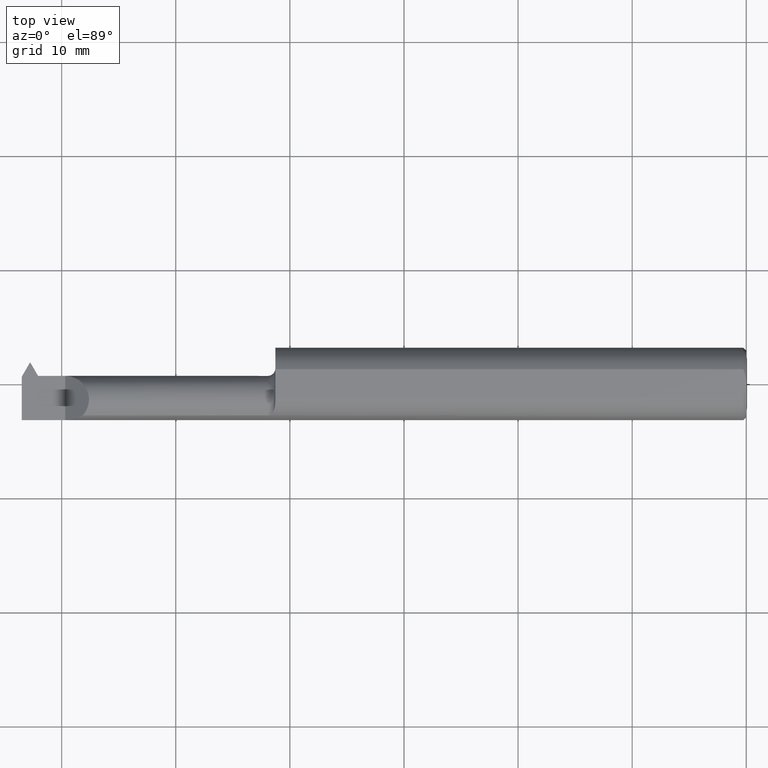
[diagram: clean part render]
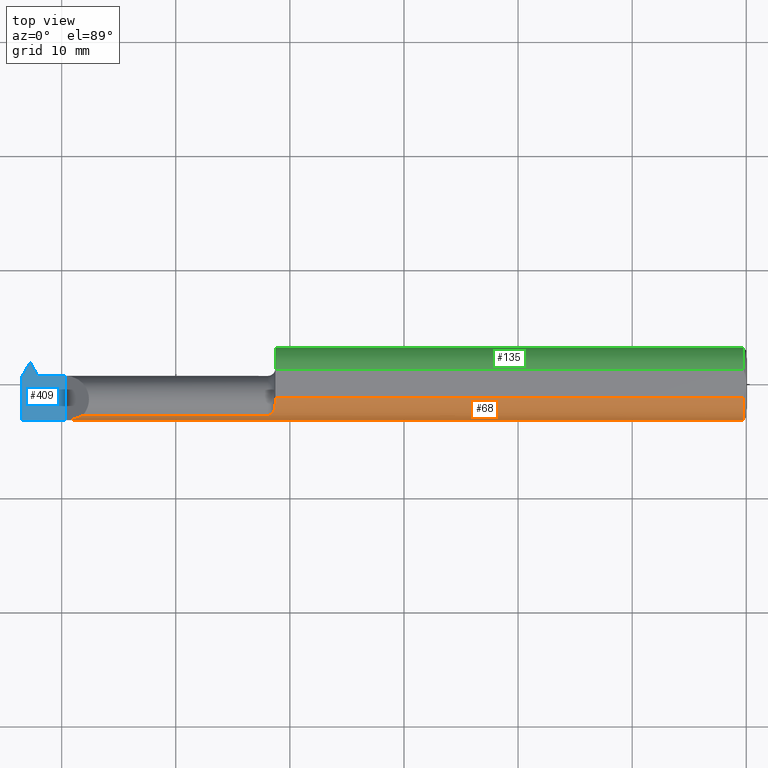
[diagram: same view with three faces highlighted in distinct colors, each labeled with its STEP entity id]
A machine part, top view with three faces highlighted in distinct colors.
Their STEP definitions:

[orange] entity #68 — the highlighted cylindrical surface (edge-blend (fillet) strip) has radius 3.1712 mm, axis along (1, 0, -0).
#15 = ORIENTED_EDGE ( 'NONE', *, *, #749, .T. ) ;
#18 = LINE ( 'NONE', #296, #731 ) ;
#25 = CARTESIAN_POINT ( 'NONE',  ( -2.328727073528534142, -0.1248500000000001275, 0.02127292647146515614 ) ) ;
#26 = CARTESIAN_POINT ( 'NONE',  ( -1.633690689866805323, -0.1002306550648300598, 0.07463060118330146209 ) ) ;
#44 = CARTESIAN_POINT ( 'NONE',  ( -1.650000000000000133, -0.1092232590529247510, 0.06047976671464379284 ) ) ;
#45 = EDGE_CURVE ( 'NONE', #613, #368, #687, .T. ) ;
#46 = LINE ( 'NONE', #440, #786 ) ;
#64 = CARTESIAN_POINT ( 'NONE',  ( -2.044384618943233534, -0.1092232590529246816, 0.06047976671464370957 ) ) ;
#68 = ADVANCED_FACE ( 'NONE', ( #376 ), #712, .T. ) ;
#78 = DIRECTION ( 'NONE',  ( -1.000000000000000000, -1.224646799147313518E-16, 0.000000000000000000 ) ) ;
#91 = CARTESIAN_POINT ( 'NONE',  ( -1.646904167968482824, -0.1092232590529394892, 0.06047976671461698095 ) ) ;
#97 = CARTESIAN_POINT ( 'NONE',  ( -1.631572284412212248, -0.09671242829710999245, 0.07917194093600758709 ) ) ;
#112 = DIRECTION ( 'NONE',  ( 0.000000000000000000, -1.000000000000000000, 1.509903313490213211E-14 ) ) ;
#127 = EDGE_CURVE ( 'NONE', #523, #613, #170, .T. ) ;
#131 = CARTESIAN_POINT ( 'NONE',  ( -2.289520233285355921, -0.1092232590529247510, 0.06047976671464364712 ) ) ;
#170 = CIRCLE ( 'NONE', #451, 0.1248500000000000720 ) ;
#176 = ORIENTED_EDGE ( 'NONE', *, *, #127, .T. ) ;
#184 = CIRCLE ( 'NONE', #518, 0.1248500000000000720 ) ;
#238 = EDGE_CURVE ( 'NONE', #368, #864, #269, .T. ) ;
#256 = CARTESIAN_POINT ( 'NONE',  ( -0.009999999999999604691, -0.1248499999999998361, 1.528971528735471346E-17 ) ) ;
#269 = LINE ( 'NONE', #64, #578 ) ;
#293 = CARTESIAN_POINT ( 'NONE',  ( -2.308130552538913083, -0.1195282781184592580, 0.04186944746108600679 ) ) ;
#296 = CARTESIAN_POINT ( 'NONE',  ( -2.500000000000000000, -0.04895916665957467107, 0.1148500000000000770 ) ) ;
#317 = VERTEX_POINT ( 'NONE', #256 ) ;
#345 =( BOUNDED_CURVE ( )  B_SPLINE_CURVE ( 3, ( #627, #25, #293, #554 ),
 .UNSPECIFIED., .F., .F. ) 
 B_SPLINE_CURVE_WITH_KNOTS ( ( 4, 4 ),
 ( 4.712388980384689674, 5.218088401039801205 ),
 .UNSPECIFIED. ) 
 CURVE ( )  GEOMETRIC_REPRESENTATION_ITEM ( )  RATIONAL_B_SPLINE_CURVE ( ( 1.000000000000000000, 0.9788023059027126660, 0.9788023059027126660, 1.000000000000000000 ) ) 
 REPRESENTATION_ITEM ( '' )  );
#358 = CARTESIAN_POINT ( 'NONE',  ( -1.625000000000000222, -0.06535139275766770062, 0.1063800637555453732 ) ) ;
#368 = VERTEX_POINT ( 'NONE', #44 ) ;
#372 = DIRECTION ( 'NONE',  ( 1.000000000000000000, 1.224646799147352961E-16, -0.000000000000000000 ) ) ;
#376 = FACE_OUTER_BOUND ( 'NONE', #417, .T. ) ;
#380 = ORIENTED_EDGE ( 'NONE', *, *, #537, .F. ) ;
#389 = CARTESIAN_POINT ( 'NONE',  ( -0.009999999999999620304, -0.04895916665957435882, 0.1148500000000000770 ) ) ;
#394 = EDGE_CURVE ( 'NONE', #317, #410, #184, .T. ) ;
#396 = AXIS2_PLACEMENT_3D ( 'NONE', #783, #372, #580 ) ;
#410 = VERTEX_POINT ( 'NONE', #389 ) ;
#417 = EDGE_LOOP ( 'NONE', ( #694, #15, #641, #380, #176, #601, #442 ) ) ;
#421 = CARTESIAN_POINT ( 'NONE',  ( -1.625000000000000222, -0.06535139275766770062, 0.1063800637555453732 ) ) ;
#432 = CARTESIAN_POINT ( 'NONE',  ( -1.628207506445969122, -0.08891621056626079767, 0.08783733555404946158 ) ) ;
#440 = CARTESIAN_POINT ( 'NONE',  ( -2.500000000000000000, -0.1248500000000001414, 1.528971528735471346E-17 ) ) ;
#442 = ORIENTED_EDGE ( 'NONE', *, *, #238, .T. ) ;
#451 = AXIS2_PLACEMENT_3D ( 'NONE', #769, #845, #112 ) ;
#496 = CARTESIAN_POINT ( 'NONE',  ( -1.625000000000000666, -0.07054241148903399317, 0.1031911175192854191 ) ) ;
#518 = AXIS2_PLACEMENT_3D ( 'NONE', #680, #78, #847 ) ;
#523 = VERTEX_POINT ( 'NONE', #763 ) ;
#537 = EDGE_CURVE ( 'NONE', #523, #410, #18, .T. ) ;
#549 = CARTESIAN_POINT ( 'NONE',  ( -1.644142011591956054, -0.1083236330372056716, 0.06211474020592992057 ) ) ;
#554 = CARTESIAN_POINT ( 'NONE',  ( -2.289520233285355921, -0.1092232590529247510, 0.06047976671464364712 ) ) ;
#561 = CARTESIAN_POINT ( 'NONE',  ( -2.350000000000000089, -0.1248500000000000998, 0.000000000000000000 ) ) ;
#578 = VECTOR ( 'NONE', #656, 39.37007874015748143 ) ;
#580 = DIRECTION ( 'NONE',  ( 0.000000000000000000, 1.000000000000000000, 0.000000000000000000 ) ) ;
#601 = ORIENTED_EDGE ( 'NONE', *, *, #45, .T. ) ;
#610 = VERTEX_POINT ( 'NONE', #561 ) ;
#613 = VERTEX_POINT ( 'NONE', #358 ) ;
#624 = CARTESIAN_POINT ( 'NONE',  ( -1.625400300771548290, -0.07542150831051155913, 0.09967330204894177259 ) ) ;
#625 = EDGE_CURVE ( 'NONE', #610, #864, #345, .T. ) ;
#627 = CARTESIAN_POINT ( 'NONE',  ( -2.350000000000000089, -0.1248500000000000998, 0.000000000000000000 ) ) ;
#641 = ORIENTED_EDGE ( 'NONE', *, *, #394, .T. ) ;
#656 = DIRECTION ( 'NONE',  ( -1.000000000000000000, -1.301231752219315598E-17, -0.000000000000000000 ) ) ;
#680 = CARTESIAN_POINT ( 'NONE',  ( -0.009999999999999620304, 2.437047130303233156E-16, 0.000000000000000000 ) ) ;
#687 = B_SPLINE_CURVE_WITH_KNOTS ( 'NONE', 3,
 ( #421, #496, #624, #764, #432, #97, #26, #831, #689, #549, #91, #825 ),
 .UNSPECIFIED., .F., .F.,
 ( 4, 2, 2, 2, 2, 4 ),
 ( 3.030490085935451039E-05, 0.0004889370798618061309, 0.0009475692588642571721, 0.001406201437866708105, 0.001635517527367934005, 0.001864833616869159688 ),
 .UNSPECIFIED. ) ;
#689 = CARTESIAN_POINT ( 'NONE',  ( -1.639872773867707467, -0.1060950243526078973, 0.06584904124472054643 ) ) ;
#694 = ORIENTED_EDGE ( 'NONE', *, *, #625, .F. ) ;
#707 = DIRECTION ( 'NONE',  ( 1.000000000000000000, 1.224646799147352961E-16, -0.000000000000000000 ) ) ;
#712 = CYLINDRICAL_SURFACE ( 'NONE', #396, 0.1248500000000000720 ) ;
#731 = VECTOR ( 'NONE', #760, 39.37007874015748143 ) ;
#749 = EDGE_CURVE ( 'NONE', #610, #317, #46, .T. ) ;
#760 = DIRECTION ( 'NONE',  ( 1.000000000000000000, 1.224646799147352961E-16, -0.000000000000000000 ) ) ;
#763 = CARTESIAN_POINT ( 'NONE',  ( -1.625000000000000222, -0.04895916665957456004, 0.1148500000000000770 ) ) ;
#764 = CARTESIAN_POINT ( 'NONE',  ( -1.626996939049467850, -0.08458882217984409202, 0.09202120527030092922 ) ) ;
#769 = CARTESIAN_POINT ( 'NONE',  ( -1.625000000000000222, 4.592425496802568672E-17, 0.000000000000000000 ) ) ;
#783 = CARTESIAN_POINT ( 'NONE',  ( -2.500000000000000000, -6.123233995736767268E-17, 0.000000000000000000 ) ) ;
#786 = VECTOR ( 'NONE', #707, 39.37007874015748143 ) ;
#825 = CARTESIAN_POINT ( 'NONE',  ( -1.650000000000000133, -0.1092232590529247510, 0.06047976671464379284 ) ) ;
#831 = CARTESIAN_POINT ( 'NONE',  ( -1.638167052038310478, -0.1047260336402104225, 0.06802262465471324571 ) ) ;
#845 = DIRECTION ( 'NONE',  ( 1.000000000000000000, 1.301231752219315598E-17, 0.000000000000000000 ) ) ;
#847 = DIRECTION ( 'NONE',  ( -1.196619440556782523E-16, 1.000000000000000000, 0.000000000000000000 ) ) ;
#864 = VERTEX_POINT ( 'NONE', #131 ) ;

[blue] entity #409 — the highlighted planar face has unit normal (-0, 0, -1).
#32 = ORIENTED_EDGE ( 'NONE', *, *, #593, .T. ) ;
#33 = CARTESIAN_POINT ( 'NONE',  ( -2.443769237886467494, 0.02814999999999980712, 0.000000000000000000 ) ) ;
#42 = LINE ( 'NONE', #308, #592 ) ;
#65 = VERTEX_POINT ( 'NONE', #502 ) ;
#71 = VECTOR ( 'NONE', #437, 39.37007874015748143 ) ;
#80 = EDGE_CURVE ( 'NONE', #252, #761, #42, .T. ) ;
#108 = CARTESIAN_POINT ( 'NONE',  ( -2.472249999999999837, 0.07314999999999981239, 0.000000000000000000 ) ) ;
#121 = ORIENTED_EDGE ( 'NONE', *, *, #679, .T. ) ;
#122 = FACE_OUTER_BOUND ( 'NONE', #211, .T. ) ;
#142 = VECTOR ( 'NONE', #559, 39.37007874015748143 ) ;
#162 = CARTESIAN_POINT ( 'NONE',  ( -2.500000000000000000, 0.07314999999999986791, 8.875653457662611807E-19 ) ) ;
#168 = CARTESIAN_POINT ( 'NONE',  ( -2.350000000000000089, -0.2500000000000000000, 0.000000000000000000 ) ) ;
#200 = ORIENTED_EDGE ( 'NONE', *, *, #566, .F. ) ;
#211 = EDGE_LOOP ( 'NONE', ( #200, #266, #539, #32, #121, #594, #779, #622 ) ) ;
#214 = VECTOR ( 'NONE', #623, 39.37007874015748143 ) ;
#218 = DIRECTION ( 'NONE',  ( 1.000000000000000000, 1.493979371535119206E-14, 0.000000000000000000 ) ) ;
#224 = DIRECTION ( 'NONE',  ( 1.224646799147352961E-16, -1.000000000000000000, -7.246360398178432350E-34 ) ) ;
#231 = VECTOR ( 'NONE', #820, 39.37007874015748143 ) ;
#234 = LINE ( 'NONE', #696, #435 ) ;
#242 = LINE ( 'NONE', #777, #550 ) ;
#252 = VERTEX_POINT ( 'NONE', #533 ) ;
#266 = ORIENTED_EDGE ( 'NONE', *, *, #730, .F. ) ;
#267 = CARTESIAN_POINT ( 'NONE',  ( -2.500000000000000000, -0.2500000000000000000, 8.875653457662611807E-19 ) ) ;
#289 = AXIS2_PLACEMENT_3D ( 'NONE', #267, #393, #327 ) ;
#291 = VERTEX_POINT ( 'NONE', #642 ) ;
#299 = CARTESIAN_POINT ( 'NONE',  ( -2.500000000000000000, -6.123233995736767268E-17, 8.875653457662611807E-19 ) ) ;
#308 = CARTESIAN_POINT ( 'NONE',  ( -1.820637620856585981, -1.051145620498308064, 0.000000000000000000 ) ) ;
#327 = DIRECTION ( 'NONE',  ( -1.000000000000000000, 0.000000000000000000, 5.917102305108406074E-18 ) ) ;
#354 = PLANE ( 'NONE',  #289 ) ;
#393 = DIRECTION ( 'NONE',  ( -5.917102305108406074E-18, 0.000000000000000000, -1.000000000000000000 ) ) ;
#409 = ADVANCED_FACE ( 'NONE', ( #122 ), #354, .F. ) ;
#435 = VECTOR ( 'NONE', #218, 39.37007874015748143 ) ;
#437 = DIRECTION ( 'NONE',  ( -0.000000000000000000, 1.000000000000000000, -0.000000000000000000 ) ) ;
#446 = VERTEX_POINT ( 'NONE', #859 ) ;
#498 = CARTESIAN_POINT ( 'NONE',  ( -2.500000000000000000, -0.1248500000000001414, 8.875653457662609881E-19 ) ) ;
#502 = CARTESIAN_POINT ( 'NONE',  ( -2.438769237886466712, 0.02814999999999973773, 0.000000000000000000 ) ) ;
#516 = VERTEX_POINT ( 'NONE', #827 ) ;
#525 = EDGE_CURVE ( 'NONE', #65, #446, #698, .T. ) ;
#533 = CARTESIAN_POINT ( 'NONE',  ( -2.469750000000001222, 0.07315000000000000668, 0.000000000000000000 ) ) ;
#539 = ORIENTED_EDGE ( 'NONE', *, *, #546, .T. ) ;
#546 = EDGE_CURVE ( 'NONE', #291, #516, #547, .T. ) ;
#547 = LINE ( 'NONE', #299, #715 ) ;
#550 = VECTOR ( 'NONE', #710, 39.37007874015748854 ) ;
#559 = DIRECTION ( 'NONE',  ( 1.000000000000000000, 1.301231752219315598E-17, 0.000000000000000000 ) ) ;
#561 = CARTESIAN_POINT ( 'NONE',  ( -2.350000000000000089, -0.1248500000000000998, 0.000000000000000000 ) ) ;
#566 = EDGE_CURVE ( 'NONE', #724, #252, #617, .T. ) ;
#588 = DIRECTION ( 'NONE',  ( 0.4999999999999993894, -0.8660254037844390407, 0.000000000000000000 ) ) ;
#592 = VECTOR ( 'NONE', #588, 39.37007874015748854 ) ;
#593 = EDGE_CURVE ( 'NONE', #516, #610, #830, .T. ) ;
#594 = ORIENTED_EDGE ( 'NONE', *, *, #525, .F. ) ;
#609 = EDGE_CURVE ( 'NONE', #761, #65, #234, .T. ) ;
#610 = VERTEX_POINT ( 'NONE', #561 ) ;
#617 = LINE ( 'NONE', #162, #142 ) ;
#622 = ORIENTED_EDGE ( 'NONE', *, *, #80, .F. ) ;
#623 = DIRECTION ( 'NONE',  ( 1.000000000000000000, 1.224646799147352961E-16, -0.000000000000000000 ) ) ;
#642 = CARTESIAN_POINT ( 'NONE',  ( -2.500000000000000000, 0.02508559008996132447, 0.000000000000000000 ) ) ;
#679 = EDGE_CURVE ( 'NONE', #610, #446, #774, .T. ) ;
#696 = CARTESIAN_POINT ( 'NONE',  ( -4.205551930876778585E-16, 0.02815000000003626407, 0.000000000000000000 ) ) ;
#698 = LINE ( 'NONE', #752, #231 ) ;
#710 = DIRECTION ( 'NONE',  ( 0.4999999999999898970, 0.8660254037844443697, 0.000000000000000000 ) ) ;
#715 = VECTOR ( 'NONE', #224, 39.37007874015748143 ) ;
#724 = VERTEX_POINT ( 'NONE', #108 ) ;
#730 = EDGE_CURVE ( 'NONE', #291, #724, #242, .T. ) ;
#752 = CARTESIAN_POINT ( 'NONE',  ( -2.500000000000000000, 0.02814999999999985916, 8.875653457662611807E-19 ) ) ;
#761 = VERTEX_POINT ( 'NONE', #33 ) ;
#774 = LINE ( 'NONE', #168, #71 ) ;
#777 = CARTESIAN_POINT ( 'NONE',  ( -1.885862379143440126, 1.088803152253024153, 0.000000000000000000 ) ) ;
#779 = ORIENTED_EDGE ( 'NONE', *, *, #609, .F. ) ;
#820 = DIRECTION ( 'NONE',  ( 1.000000000000000000, 1.301231752219315598E-17, 0.000000000000000000 ) ) ;
#827 = CARTESIAN_POINT ( 'NONE',  ( -2.500000000000000000, -0.1248500000000001414, 8.875653457662611807E-19 ) ) ;
#830 = LINE ( 'NONE', #498, #214 ) ;
#859 = CARTESIAN_POINT ( 'NONE',  ( -2.350000000000000089, 0.02814999999999987651, 0.000000000000000000 ) ) ;

[green] entity #135 — the highlighted cylindrical surface (edge-blend (fillet) strip) has radius 3.1712 mm, axis along (1, 0, -0).
#43 = VERTEX_POINT ( 'NONE', #366 ) ;
#58 = DIRECTION ( 'NONE',  ( 1.000000000000000000, 1.301231752219315598E-17, 0.000000000000000000 ) ) ;
#88 = AXIS2_PLACEMENT_3D ( 'NONE', #723, #251, #789 ) ;
#93 = DIRECTION ( 'NONE',  ( 1.000000000000000000, 1.224646799147352961E-16, -0.000000000000000000 ) ) ;
#135 = ADVANCED_FACE ( 'NONE', ( #849 ), #719, .T. ) ;
#155 = LINE ( 'NONE', #416, #603 ) ;
#226 = ORIENTED_EDGE ( 'NONE', *, *, #672, .T. ) ;
#248 = VERTEX_POINT ( 'NONE', #526 ) ;
#251 = DIRECTION ( 'NONE',  ( 1.000000000000000000, 1.224646799147352961E-16, -0.000000000000000000 ) ) ;
#290 = CIRCLE ( 'NONE', #771, 0.1248500000000000720 ) ;
#307 = DIRECTION ( 'NONE',  ( -1.196619440556782523E-16, 1.000000000000000000, 1.776356839400250465E-15 ) ) ;
#309 = CARTESIAN_POINT ( 'NONE',  ( -0.009999999999999620304, 2.437047130303233156E-16, 0.000000000000000000 ) ) ;
#366 = CARTESIAN_POINT ( 'NONE',  ( -1.625000000000000222, 0.04895916665957480984, 0.1148500000000000770 ) ) ;
#375 = DIRECTION ( 'NONE',  ( -1.000000000000000000, -1.224646799147313518E-16, 0.000000000000000000 ) ) ;
#382 = VECTOR ( 'NONE', #93, 39.37007874015748143 ) ;
#416 = CARTESIAN_POINT ( 'NONE',  ( -2.500000000000000000, 0.04895916665957451147, 0.1148500000000000770 ) ) ;
#448 = AXIS2_PLACEMENT_3D ( 'NONE', #309, #375, #307 ) ;
#458 = ORIENTED_EDGE ( 'NONE', *, *, #591, .F. ) ;
#473 = EDGE_CURVE ( 'NONE', #248, #43, #155, .T. ) ;
#482 = CARTESIAN_POINT ( 'NONE',  ( -2.500000000000000000, 0.1248500000000000026, 0.000000000000000000 ) ) ;
#526 = CARTESIAN_POINT ( 'NONE',  ( -0.009999999999999620304, 0.04895916665957482372, 0.1148500000000000770 ) ) ;
#562 = ORIENTED_EDGE ( 'NONE', *, *, #473, .F. ) ;
#591 = EDGE_CURVE ( 'NONE', #605, #784, #693, .T. ) ;
#603 = VECTOR ( 'NONE', #684, 39.37007874015748143 ) ;
#605 = VERTEX_POINT ( 'NONE', #816 ) ;
#661 = DIRECTION ( 'NONE',  ( 0.000000000000000000, -1.000000000000000000, 0.000000000000000000 ) ) ;
#672 = EDGE_CURVE ( 'NONE', #248, #784, #814, .T. ) ;
#684 = DIRECTION ( 'NONE',  ( -1.000000000000000000, -1.224646799147352961E-16, 0.000000000000000000 ) ) ;
#693 = LINE ( 'NONE', #482, #382 ) ;
#719 = CYLINDRICAL_SURFACE ( 'NONE', #88, 0.1248500000000000720 ) ;
#723 = CARTESIAN_POINT ( 'NONE',  ( -2.500000000000000000, -6.123233995736767268E-17, 0.000000000000000000 ) ) ;
#733 = CARTESIAN_POINT ( 'NONE',  ( -1.625000000000000222, 4.592425496802568672E-17, 0.000000000000000000 ) ) ;
#744 = ORIENTED_EDGE ( 'NONE', *, *, #826, .T. ) ;
#771 = AXIS2_PLACEMENT_3D ( 'NONE', #733, #58, #661 ) ;
#784 = VERTEX_POINT ( 'NONE', #844 ) ;
#789 = DIRECTION ( 'NONE',  ( 0.000000000000000000, 1.000000000000000000, 0.000000000000000000 ) ) ;
#814 = CIRCLE ( 'NONE', #448, 0.1248500000000000720 ) ;
#816 = CARTESIAN_POINT ( 'NONE',  ( -1.625000000000000222, 0.1248500000000001275, 0.000000000000000000 ) ) ;
#826 = EDGE_CURVE ( 'NONE', #605, #43, #290, .T. ) ;
#838 = EDGE_LOOP ( 'NONE', ( #458, #744, #562, #226 ) ) ;
#844 = CARTESIAN_POINT ( 'NONE',  ( -0.009999999999999635916, 0.1248500000000003218, 0.000000000000000000 ) ) ;
#849 = FACE_OUTER_BOUND ( 'NONE', #838, .T. ) ;